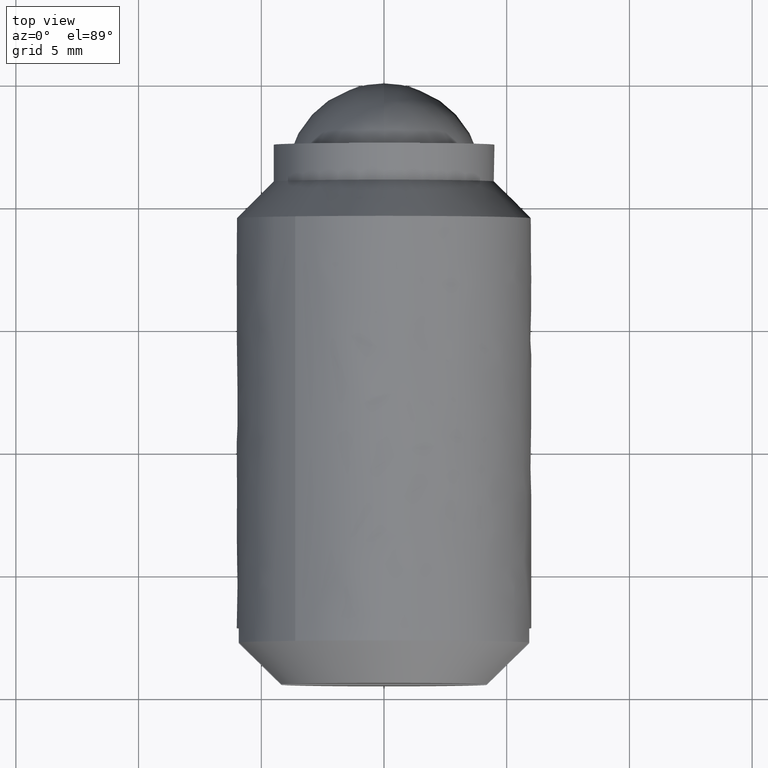
[diagram: clean part render]
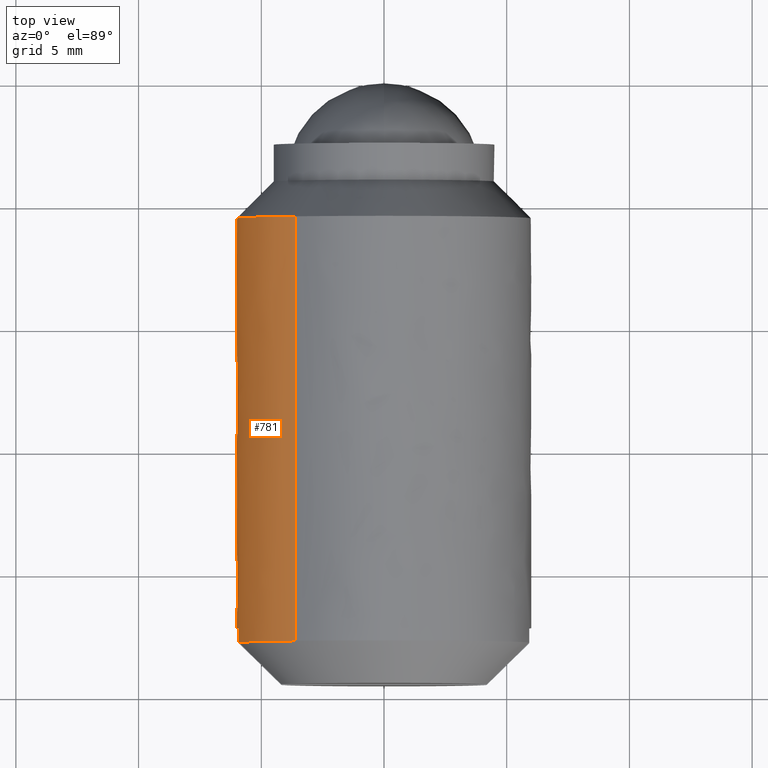
[diagram: same view with one face highlighted and labeled with its STEP entity id]
A machine part, top view. The second image highlights one B-rep face of the part: STEP entity #781.
In plain terms, the highlighted face is a freeform B-spline surface patch.
Its self-contained STEP definition (entity closure, byte-faithful):
#464=CARTESIAN_POINT('',(-5.988808790533744,-5.500000000004731,0.366291237245100));
#465=VERTEX_POINT('',#464);
#471=CARTESIAN_POINT('',(-3.618751996580211,-5.500000000000002,4.785878601390381));
#472=VERTEX_POINT('',#471);
#473=CARTESIAN_POINT('',(-3.618751996580210,-5.500000000000002,4.785878601390381));
#474=CARTESIAN_POINT('',(-5.820310628495616,-5.500000000000001,3.121211833940571));
#475=CARTESIAN_POINT('',(-5.988808790533744,-5.500000000004731,0.366291237245100));
#483=(BOUNDED_CURVE()B_SPLINE_CURVE(2,(#473,#474,#475),.UNSPECIFIED.,.F.,.U.)B_SPLINE_CURVE_WITH_KNOTS((3,3),(0.604146613491099,0.739332962239912),.UNSPECIFIED.)CURVE()GEOMETRIC_REPRESENTATION_ITEM()RATIONAL_B_SPLINE_CURVE((0.857629186986864,0.831207002155740,0.976072041668794))REPRESENTATION_ITEM(''));
#484=EDGE_CURVE('',#472,#465,#483,.T.);
#561=CARTESIAN_POINT('',(-5.500045112384811,-5.499999999999999,-2.397812286587266));
#562=VERTEX_POINT('',#561);
#576=CARTESIAN_POINT('',(-5.988808790533744,-5.500000000004731,0.366291237245100));
#577=CARTESIAN_POINT('',(-6.000000000000001,-5.500000000000000,0.183316579827302));
#578=CARTESIAN_POINT('',(-6.0,-5.500000000000000,-1.591988E-015));
#579=CARTESIAN_POINT('',(-6.0,-5.500000000000000,-1.251027589798952));
#580=CARTESIAN_POINT('',(-5.500045112384811,-5.499999999999998,-2.397812286587265));
#588=(BOUNDED_CURVE()B_SPLINE_CURVE(2,(#576,#577,#578,#579,#580),.UNSPECIFIED.,.F.,.U.)B_SPLINE_CURVE_WITH_KNOTS((3,2,3),(0.739332962239913,0.750000000000000,0.817857007856095),.UNSPECIFIED.)CURVE()GEOMETRIC_REPRESENTATION_ITEM()RATIONAL_B_SPLINE_CURVE((0.976072041668797,0.987502787900974,1.0,0.920500570199915,0.884157887859825))REPRESENTATION_ITEM(''));
#589=EDGE_CURVE('',#465,#562,#588,.T.);
#626=CARTESIAN_POINT('',(-3.618751917186941,-22.800000000000001,4.785878661422093));
#627=VERTEX_POINT('',#626);
#628=CARTESIAN_POINT('',(-3.618751996580211,-5.500000000000002,4.785878601390381));
#629=CARTESIAN_POINT('',(-3.618751917186941,-22.800000000000001,4.785878661422093));
#630=QUASI_UNIFORM_CURVE('',1,(#628,#629),.UNSPECIFIED.,.F.,.U.);
#631=EDGE_CURVE('',#472,#627,#630,.T.);
#679=CARTESIAN_POINT('',(-5.500043753276088,-22.800000000000001,-2.397815404080704));
#680=VERTEX_POINT('',#679);
#696=CARTESIAN_POINT('',(-5.500045112384811,-5.499999999999999,-2.397812286587266));
#697=CARTESIAN_POINT('',(-5.500043753276088,-22.800000000000001,-2.397815404080704));
#698=QUASI_UNIFORM_CURVE('',1,(#696,#697),.UNSPECIFIED.,.F.,.U.);
#699=EDGE_CURVE('',#562,#680,#698,.T.);
#704=CARTESIAN_POINT('',(-3.618752468812287,-5.067499999999999,4.785878244320988));
#705=CARTESIAN_POINT('',(-7.389018914736026,-5.067499999999998,1.935061672575462));
#706=CARTESIAN_POINT('',(-5.500043192005914,-5.067499999999998,-2.397816691506962));
#707=CARTESIAN_POINT('',(-3.618752468812287,-23.243312500000009,4.785878244320988));
#708=CARTESIAN_POINT('',(-7.389018914736026,-23.243312500000016,1.935061672575462));
#709=CARTESIAN_POINT('',(-5.500043192005914,-23.243312500000002,-2.397816691506962));
#717=(BOUNDED_SURFACE()B_SPLINE_SURFACE(2,1,((#704,#707),(#705,#708),(#706,#709)),.UNSPECIFIED.,.F.,.F.,.U.)B_SPLINE_SURFACE_WITH_KNOTS((3,3),(2,2),(0.0,8.314027998213582),(0.0,18.175812500000010),.UNSPECIFIED.)GEOMETRIC_REPRESENTATION_ITEM()RATIONAL_B_SPLINE_SURFACE(((1.0,1.0),(0.753969696196700,0.753969696196700),(0.921270302782944,0.921270302782944)))REPRESENTATION_ITEM('')SURFACE());
#718=ORIENTED_EDGE('',*,*,#484,.T.);
#719=ORIENTED_EDGE('',*,*,#589,.T.);
#720=ORIENTED_EDGE('',*,*,#699,.T.);
#721=CARTESIAN_POINT('',(-5.916079783099621,-22.800000000000001,-1.0));
#722=VERTEX_POINT('',#721);
#723=CARTESIAN_POINT('',(-5.916079783099617,-22.800000000000001,-0.999999999999998));
#724=CARTESIAN_POINT('',(-5.793637572341576,-22.799999999999997,-1.724377887663670));
#725=CARTESIAN_POINT('',(-5.500043753276088,-22.799999999999994,-2.397815404080704));
#733=(BOUNDED_CURVE()B_SPLINE_CURVE(2,(#723,#724,#725),.UNSPECIFIED.,.F.,.U.)B_SPLINE_CURVE_WITH_KNOTS((3,3),(0.0,0.090775577009492),.UNSPECIFIED.)CURVE()GEOMETRIC_REPRESENTATION_ITEM()RATIONAL_B_SPLINE_CURVE((1.0,0.957110830280779,0.929794817076440))REPRESENTATION_ITEM(''));
#734=EDGE_CURVE('',#722,#680,#733,.T.);
#735=ORIENTED_EDGE('',*,*,#734,.F.);
#736=CARTESIAN_POINT('',(-5.916079783099621,-22.199999999999999,-1.0));
#737=VERTEX_POINT('',#736);
#738=CARTESIAN_POINT('',(-5.916079783099621,-22.199999999999999,-1.0));
#739=CARTESIAN_POINT('',(-5.916079783099621,-22.800000000000001,-1.0));
#740=QUASI_UNIFORM_CURVE('',1,(#738,#739),.UNSPECIFIED.,.F.,.U.);
#741=EDGE_CURVE('',#737,#722,#740,.T.);
#742=ORIENTED_EDGE('',*,*,#741,.F.);
#743=CARTESIAN_POINT('',(-5.916079783099621,-22.199999999999999,1.0));
#744=VERTEX_POINT('',#743);
#745=CARTESIAN_POINT('',(-5.916079783099616,-22.199999999999999,0.999999999999997));
#746=CARTESIAN_POINT('',(-6.085110634045319,-22.199999999999996,-1.951564E-015));
#747=CARTESIAN_POINT('',(-5.916079783099617,-22.199999999999999,-0.999999999999997));
#755=(BOUNDED_CURVE()B_SPLINE_CURVE(2,(#745,#746,#747),.UNSPECIFIED.,.F.,.U.)CURVE()GEOMETRIC_REPRESENTATION_ITEM()QUASI_UNIFORM_CURVE()RATIONAL_B_SPLINE_CURVE((1.0,0.986013297183270,1.0))REPRESENTATION_ITEM(''));
#756=EDGE_CURVE('',#744,#737,#755,.T.);
#757=ORIENTED_EDGE('',*,*,#756,.F.);
#758=CARTESIAN_POINT('',(-5.916079783099621,-22.800000000000001,1.0));
#759=VERTEX_POINT('',#758);
#760=CARTESIAN_POINT('',(-5.916079783099621,-22.199999999999999,1.0));
#761=CARTESIAN_POINT('',(-5.916079783099621,-22.800000000000001,1.0));
#762=QUASI_UNIFORM_CURVE('',1,(#760,#761),.UNSPECIFIED.,.F.,.U.);
#763=EDGE_CURVE('',#744,#759,#762,.T.);
#764=ORIENTED_EDGE('',*,*,#763,.T.);
#765=CARTESIAN_POINT('',(-3.618751917186941,-22.800000000000004,4.785878661422093));
#766=CARTESIAN_POINT('',(-5.519021983176772,-22.799999999999997,3.349025622845535));
#767=CARTESIAN_POINT('',(-5.916079783099616,-22.800000000000001,1.000000000000002));
#775=(BOUNDED_CURVE()B_SPLINE_CURVE(2,(#765,#766,#767),.UNSPECIFIED.,.F.,.U.)B_SPLINE_CURVE_WITH_KNOTS((3,3),(0.731462636504327,1.0),.UNSPECIFIED.)CURVE()GEOMETRIC_REPRESENTATION_ITEM()RATIONAL_B_SPLINE_CURVE((0.882530740715471,0.873122870867397,1.0))REPRESENTATION_ITEM(''));
#776=EDGE_CURVE('',#627,#759,#775,.T.);
#777=ORIENTED_EDGE('',*,*,#776,.F.);
#778=ORIENTED_EDGE('',*,*,#631,.F.);
#779=EDGE_LOOP('',(#718,#719,#720,#735,#742,#757,#764,#777,#778));
#780=FACE_OUTER_BOUND('',#779,.T.);
#781=ADVANCED_FACE('',(#780),#717,.T.);